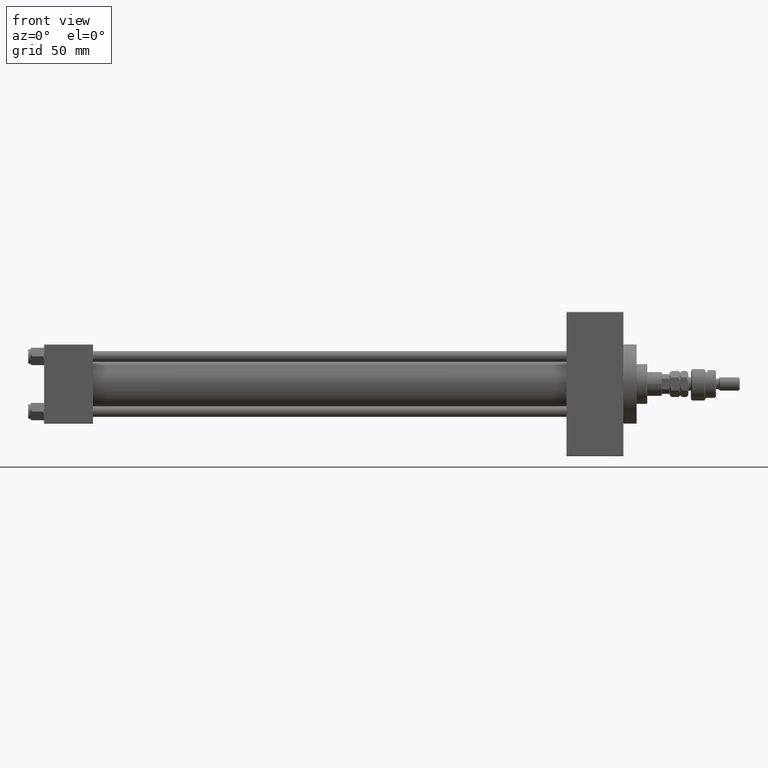
[diagram: clean part render]
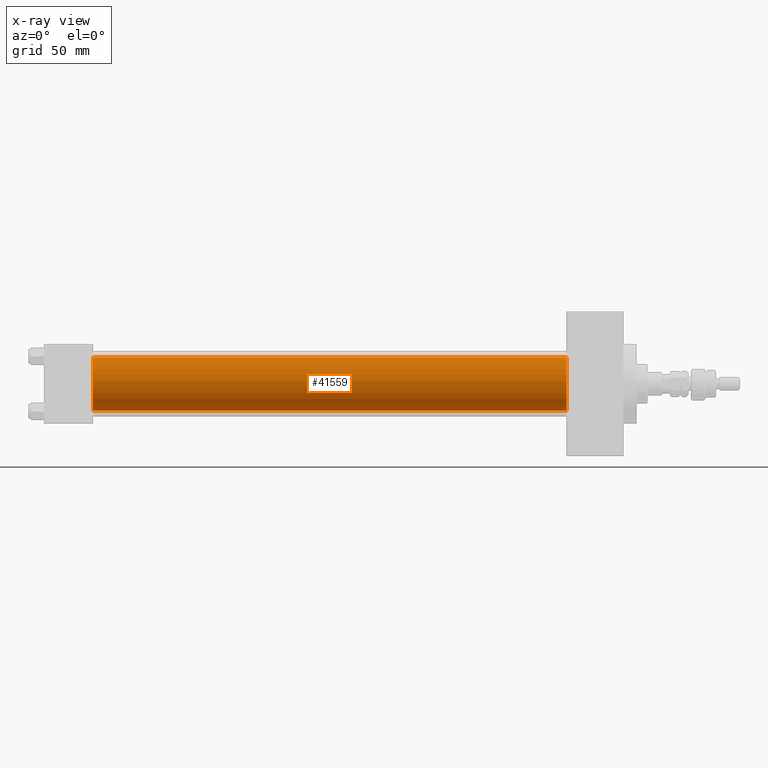
[diagram: x-ray — body ghosted, one internal face saturated and labeled with its STEP entity id]
A machine part, front view, then the same camera in x-ray: the body is ghosted and one INTERNAL B-rep face — a face not visible from any outside direction — is saturated and labeled: STEP entity #41559.
In plain terms, the highlighted cylindrical surface (edge-blend (fillet) strip) has radius 20 mm, axis along (-1, -0, -0).
Its self-contained STEP definition (entity closure, byte-faithful):
#220 = EDGE_CURVE ( 'NONE', #27680, #38912, #18720, .T. ) ;
#315 = FACE_OUTER_BOUND ( 'NONE', #853, .T. ) ;
#853 = EDGE_LOOP ( 'NONE', ( #5511, #49551, #30530, #24500 ) ) ;
#1005 = CARTESIAN_POINT ( 'NONE',  ( 37.00000000000000000, -1.527916156705046464E-16, -20.00000000000000000 ) ) ;
#2082 = CARTESIAN_POINT ( 'NONE',  ( 394.9999999999999432, -1.527916156705046464E-16, -20.00000000000000000 ) ) ;
#4526 = CARTESIAN_POINT ( 'NONE',  ( 394.9999999999999432, -2.602085213965210642E-15, 0.000000000000000000 ) ) ;
#5511 = ORIENTED_EDGE ( 'NONE', *, *, #5848, .T. ) ;
#5848 = EDGE_CURVE ( 'NONE', #9193, #12490, #51659, .T. ) ;
#6103 = AXIS2_PLACEMENT_3D ( 'NONE', #43887, #23863, #28072 ) ;
#6548 = LINE ( 'NONE', #2082, #28885 ) ;
#7965 = CARTESIAN_POINT ( 'NONE',  ( 394.9999999999999432, -2.602085213965210642E-15, 0.000000000000000000 ) ) ;
#9193 = VERTEX_POINT ( 'NONE', #51031 ) ;
#12490 = VERTEX_POINT ( 'NONE', #43941 ) ;
#15883 = CYLINDRICAL_SURFACE ( 'NONE', #23082, 20.00000000000000000 ) ;
#16388 = DIRECTION ( 'NONE',  ( -1.000000000000000000, -0.000000000000000000, -0.000000000000000000 ) ) ;
#18720 = CIRCLE ( 'NONE', #6103, 20.00000000000000000 ) ;
#21635 = EDGE_CURVE ( 'NONE', #9193, #27680, #28990, .T. ) ;
#23082 = AXIS2_PLACEMENT_3D ( 'NONE', #4526, #16388, #36407 ) ;
#23863 = DIRECTION ( 'NONE',  ( 1.000000000000000000, 0.000000000000000000, 0.000000000000000000 ) ) ;
#24041 = DIRECTION ( 'NONE',  ( 1.000000000000000000, 0.000000000000000000, 0.000000000000000000 ) ) ;
#24500 = ORIENTED_EDGE ( 'NONE', *, *, #21635, .F. ) ;
#25534 = AXIS2_PLACEMENT_3D ( 'NONE', #7965, #24041, #40107 ) ;
#27680 = VERTEX_POINT ( 'NONE', #40318 ) ;
#28072 = DIRECTION ( 'NONE',  ( 0.000000000000000000, 0.000000000000000000, -1.000000000000000000 ) ) ;
#28885 = VECTOR ( 'NONE', #42385, 1000.000000000000000 ) ;
#28990 = LINE ( 'NONE', #45581, #50519 ) ;
#30530 = ORIENTED_EDGE ( 'NONE', *, *, #220, .F. ) ;
#36407 = DIRECTION ( 'NONE',  ( 0.000000000000000000, 0.000000000000000000, 1.000000000000000000 ) ) ;
#38912 = VERTEX_POINT ( 'NONE', #1005 ) ;
#40107 = DIRECTION ( 'NONE',  ( 0.000000000000000000, 0.000000000000000000, -1.000000000000000000 ) ) ;
#40318 = CARTESIAN_POINT ( 'NONE',  ( 37.00000000000000000, -2.602085213965210642E-15, 20.00000000000000000 ) ) ;
#40591 = DIRECTION ( 'NONE',  ( -1.000000000000000000, -0.000000000000000000, -0.000000000000000000 ) ) ;
#41559 = ADVANCED_FACE ( 'NONE', ( #315 ), #15883, .F. ) ;
#42385 = DIRECTION ( 'NONE',  ( -1.000000000000000000, -0.000000000000000000, -0.000000000000000000 ) ) ;
#43510 = EDGE_CURVE ( 'NONE', #12490, #38912, #6548, .T. ) ;
#43887 = CARTESIAN_POINT ( 'NONE',  ( 37.00000000000000000, -2.602085213965210642E-15, 0.000000000000000000 ) ) ;
#43941 = CARTESIAN_POINT ( 'NONE',  ( 394.9999999999999432, -1.527916156705046464E-16, -20.00000000000000000 ) ) ;
#45581 = CARTESIAN_POINT ( 'NONE',  ( 394.9999999999999432, -2.602085213965210642E-15, 20.00000000000000000 ) ) ;
#49551 = ORIENTED_EDGE ( 'NONE', *, *, #43510, .T. ) ;
#50519 = VECTOR ( 'NONE', #40591, 1000.000000000000000 ) ;
#51031 = CARTESIAN_POINT ( 'NONE',  ( 394.9999999999999432, -2.602085213965210642E-15, 20.00000000000000000 ) ) ;
#51659 = CIRCLE ( 'NONE', #25534, 20.00000000000000000 ) ;